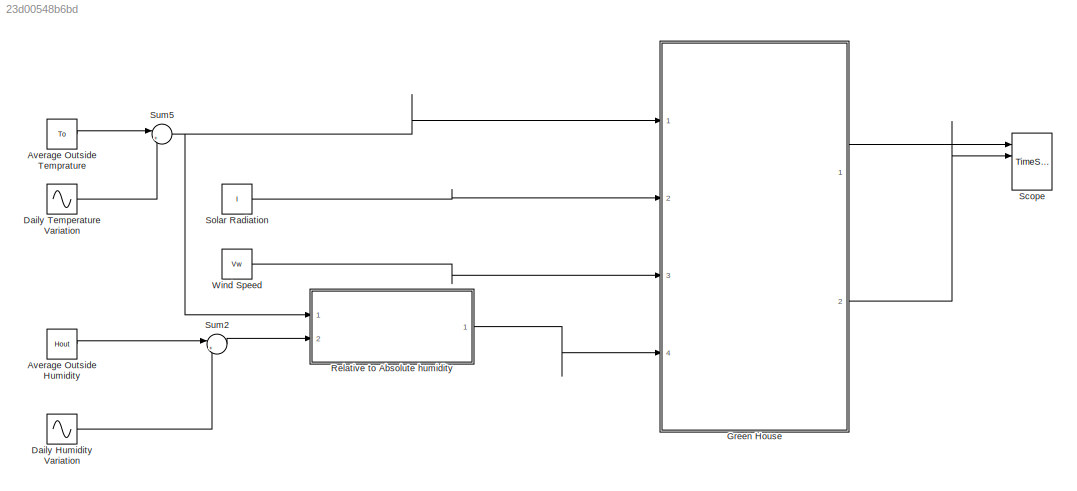
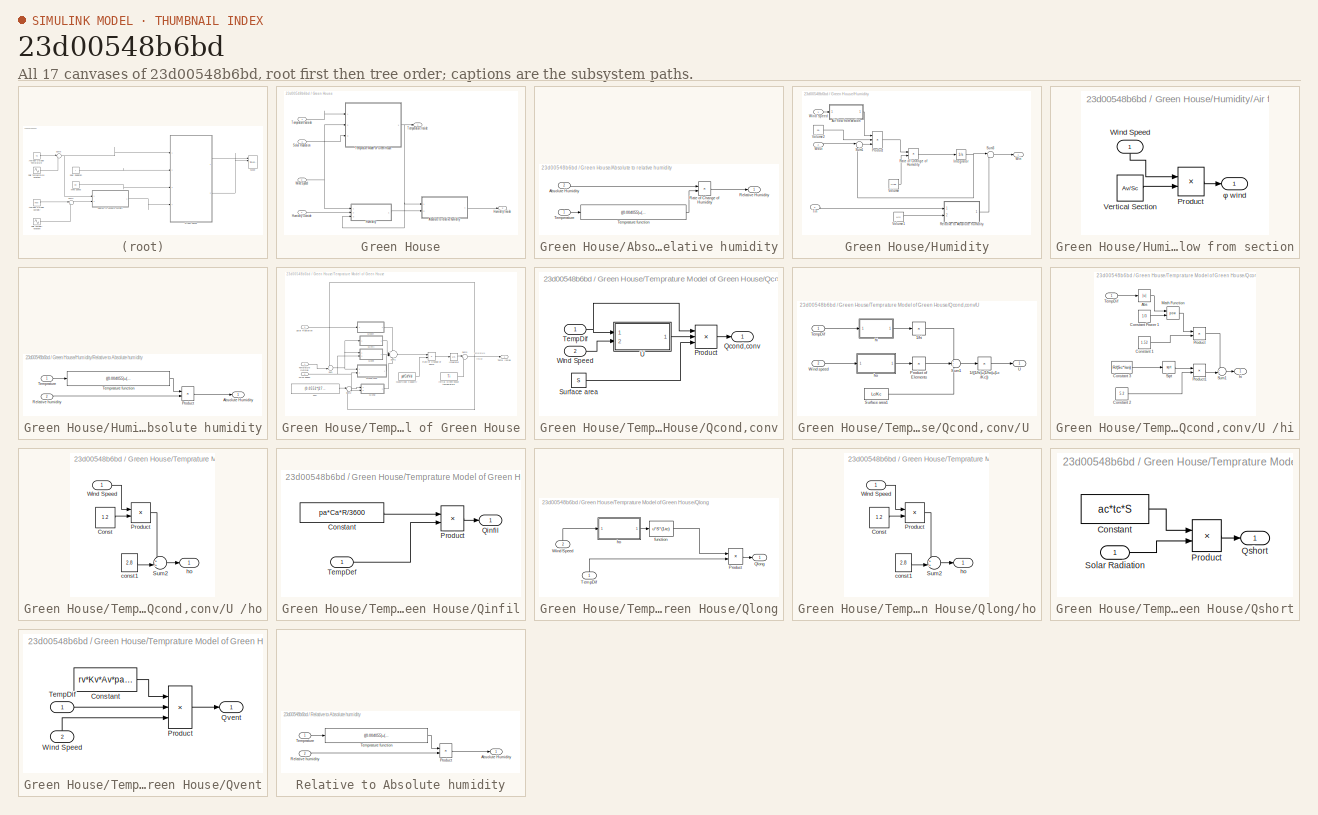
[diagram: thumbnail index - all 17 canvases of the model, root first then tree order]
MODEL slx_23d00548b6bd
KIND model
CONFIG AbsTol = auto
CONFIG FixedStep = auto
CONFIG MaxStep = auto
CONFIG MinStep = auto
CONFIG RelTol = 1e-3
CONFIG SampleTimeConstraint = Unconstrained
CONFIG Solver = ode45
CONFIG SolverMode = Auto
CONFIG SolverName = ode45
CONFIG StartTime = 0.0
CONFIG StopTime = 10000.0
BLOCK [Constant] Average Outside Humidity
  Value = Hout
BLOCK [Constant] Average Outside Temprature 
  Value = To
BLOCK [Sin] Daily Humidity Variation
  Amplitude = 5
  Frequency = 0.005
  Phase = 1.5708
  Ports = [0, 1]
  SampleTime = 0
BLOCK [Sin] Daily Temperature Variation
  Amplitude = 5
  Ports = [0, 1]
  SampleTime = 0
BLOCK [SubSystem] Green House
  Ports = [4, 2]
  RequestExecContextInheritance = off
BLOCK [SubSystem] Green House/Absolute to relative humidity
  Ports = [2, 1]
  RequestExecContextInheritance = off
BLOCK [Inport] Green House/Absolute to relative humidity/Absolute Humidity
  IconDisplay = Port number
  Port = 2
BLOCK [Product] Green House/Absolute to relative humidity/Rate of Change of Humidity
  InputSameDT = off
  Inputs = */
  OutDataTypeStr = Inherit: Inherit via internal rule
  Ports = [2, 1]
  RndMeth = Floor
  SaturateOnIntegerOverflow = off
BLOCK [Outport] Green House/Absolute to relative humidity/Relative Humidity
  IconDisplay = Port number
BLOCK [Inport] Green House/Absolute to relative humidity/Temperature
  IconDisplay = Port number
BLOCK [Fcn] Green House/Absolute to relative humidity/Temprature function
  Expr = ((0.004055)+(0.0001152*u)+0.00002167*u^2)/100
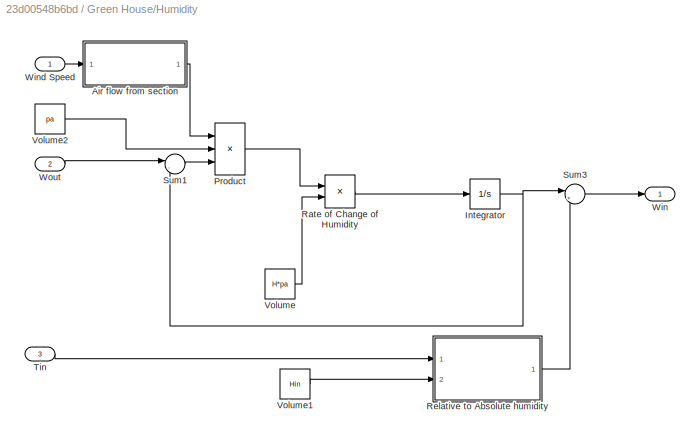
BLOCK [SubSystem] Green House/Humidity
  Ports = [3, 1]
  RequestExecContextInheritance = off
BLOCK [Outport] Green House/Humidity Inside
  IconDisplay = Port number
  Port = 2
BLOCK [Inport] Green House/Humidity Outside
  IconDisplay = Port number
  Port = 4
BLOCK [SubSystem] Green House/Humidity/Air flow from section
  Ports = [1, 1]
  RequestExecContextInheritance = off
BLOCK [Product] Green House/Humidity/Air flow from section/Product
  InputSameDT = off
  OutDataTypeStr = Inherit: Inherit via internal rule
  Ports = [2, 1]
  RndMeth = Floor
  SaturateOnIntegerOverflow = off
BLOCK [Constant] Green House/Humidity/Air flow from section/Vertical Section
  Value = Av/Sc
BLOCK [Inport] Green House/Humidity/Air flow from section/Wind Speed
  IconDisplay = Port number
BLOCK [Outport] Green House/Humidity/Air flow from section/φ wind
  IconDisplay = Port number
BLOCK [Integrator] Green House/Humidity/Integrator
  Ports = [1, 1]
BLOCK [Product] Green House/Humidity/Product
  InputSameDT = off
  Inputs = 3
  OutDataTypeStr = Inherit: Inherit via internal rule
  Ports = [3, 1]
  RndMeth = Floor
  SaturateOnIntegerOverflow = off
BLOCK [Product] Green House/Humidity/Rate of Change of Humidity
  InputSameDT = off
  Inputs = */
  OutDataTypeStr = Inherit: Inherit via internal rule
  Ports = [2, 1]
  RndMeth = Floor
  SaturateOnIntegerOverflow = off
BLOCK [SubSystem] Green House/Humidity/Relative to Absolute humidity
  Ports = [2, 1]
  RequestExecContextInheritance = off
BLOCK [Outport] Green House/Humidity/Relative to Absolute humidity/Absolute Humidity
  IconDisplay = Port number
BLOCK [Product] Green House/Humidity/Relative to Absolute humidity/Product
  InputSameDT = off
  OutDataTypeStr = Inherit: Inherit via internal rule
  Ports = [2, 1]
  RndMeth = Floor
  SaturateOnIntegerOverflow = off
BLOCK [Inport] Green House/Humidity/Relative to Absolute humidity/Relative humidity
  IconDisplay = Port number
  Port = 2
BLOCK [Inport] Green House/Humidity/Relative to Absolute humidity/Temprature
  IconDisplay = Port number
BLOCK [Fcn] Green House/Humidity/Relative to Absolute humidity/Temprature function
  Expr = ((0.004055)+(0.0001152*u)+0.00002167*u^2)/100
BLOCK [Sum] Green House/Humidity/Sum1
  IconShape = round
  InputSameDT = off
  Inputs = |-+
  OutDataTypeStr = Inherit: Inherit via internal rule
  Ports = [2, 1]
  SaturateOnIntegerOverflow = off
BLOCK [Sum] Green House/Humidity/Sum3
  IconShape = round
  InputSameDT = off
  Inputs = |++
  OutDataTypeStr = Inherit: Inherit via internal rule
  Ports = [2, 1]
  SaturateOnIntegerOverflow = off
BLOCK [Inport] Green House/Humidity/Tin 
  IconDisplay = Port number
  Port = 3
BLOCK [Constant] Green House/Humidity/Volume
  Value = H*pa
BLOCK [Constant] Green House/Humidity/Volume1
  Value = Hin
BLOCK [Constant] Green House/Humidity/Volume2
  Value = pa
BLOCK [Outport] Green House/Humidity/Win
  IconDisplay = Port number
BLOCK [Inport] Green House/Humidity/Wind Speed
  IconDisplay = Port number
BLOCK [Inport] Green House/Humidity/Wout
  IconDisplay = Port number
  Port = 2
BLOCK [Inport] Green House/Solar Radiation
  IconDisplay = Port number
  Port = 2
BLOCK [Outport] Green House/Temperature Inside
  IconDisplay = Signal name
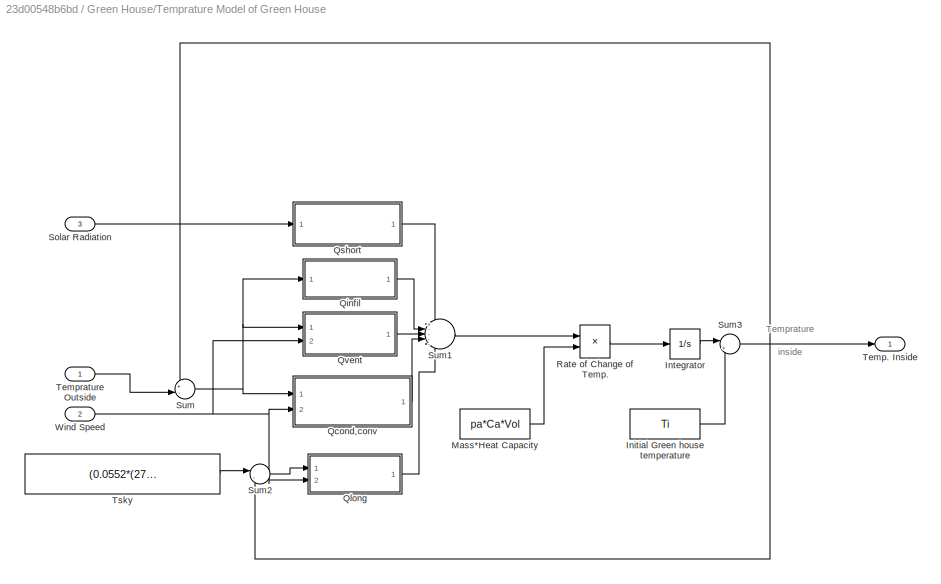
BLOCK [SubSystem] Green House/Temprature Model of Green House
  Ports = [3, 1]
  RequestExecContextInheritance = off
BLOCK [Constant] Green House/Temprature Model of Green House/Initial Green house temperature
  Value = Ti
BLOCK [Integrator] Green House/Temprature Model of Green House/Integrator
  Ports = [1, 1]
BLOCK [Constant] Green House/Temprature Model of Green House/Mass*Heat Capacity
  Value = pa*Ca*Vol
BLOCK [SubSystem] Green House/Temprature Model of Green House/Qcond,conv
  Ports = [2, 1]
  RequestExecContextInheritance = off
BLOCK [Product] Green House/Temprature Model of Green House/Qcond,conv/Product
  InputSameDT = off
  Inputs = 3
  OutDataTypeStr = Inherit: Inherit via internal rule
  Ports = [3, 1]
  RndMeth = Floor
  SaturateOnIntegerOverflow = off
BLOCK [Outport] Green House/Temprature Model of Green House/Qcond,conv/Qcond,conv
  IconDisplay = Port number
BLOCK [Constant] Green House/Temprature Model of Green House/Qcond,conv/Surface area
  Value = S
BLOCK [Inport] Green House/Temprature Model of Green House/Qcond,conv/TempDif 
  IconDisplay = Port number
BLOCK [SubSystem] Green House/Temprature Model of Green House/Qcond,conv/U 
  Ports = [2, 1]
  RequestExecContextInheritance = off
BLOCK [Product] Green House/Temprature Model of Green House/Qcond,conv/U /1//((1//hi)+(1//ho)+(Lc//Kc))
  InputSameDT = off
  Inputs = /
  OutDataTypeStr = Inherit: Inherit via internal rule
  Ports = [1, 1]
  RndMeth = Floor
  SaturateOnIntegerOverflow = off
BLOCK [Product] Green House/Temprature Model of Green House/Qcond,conv/U /1//hi
  InputSameDT = off
  Inputs = /
  OutDataTypeStr = Inherit: Inherit via internal rule
  Ports = [1, 1]
  RndMeth = Floor
  SaturateOnIntegerOverflow = off
BLOCK [Product] Green House/Temprature Model of Green House/Qcond,conv/U /Product of Elements
  InputSameDT = off
  Inputs = /
  OutDataTypeStr = Inherit: Inherit via internal rule
  Ports = [1, 1]
  RndMeth = Floor
  SaturateOnIntegerOverflow = off
BLOCK [Sum] Green House/Temprature Model of Green House/Qcond,conv/U /Sum1
  IconShape = round
  InputSameDT = off
  Inputs = +++
  OutDataTypeStr = Inherit: Inherit via internal rule
  Ports = [3, 1]
  SaturateOnIntegerOverflow = off
BLOCK [Constant] Green House/Temprature Model of Green House/Qcond,conv/U /Surface area1
  Value = Lc/Kc
BLOCK [Inport] Green House/Temprature Model of Green House/Qcond,conv/U /TempDif 
  IconDisplay = Port number
BLOCK [Outport] Green House/Temprature Model of Green House/Qcond,conv/U /U 
  IconDisplay = Port number
BLOCK [Inport] Green House/Temprature Model of Green House/Qcond,conv/U /Wind speed
  IconDisplay = Port number
  Port = 2
BLOCK [SubSystem] Green House/Temprature Model of Green House/Qcond,conv/U /hi
  Ports = [1, 1]
  RequestExecContextInheritance = off
BLOCK [Abs] Green House/Temprature Model of Green House/Qcond,conv/U /hi/Abs
  SaturateOnIntegerOverflow = off
BLOCK [Constant] Green House/Temprature Model of Green House/Qcond,conv/U /hi/Constant 1
  Value = 1.52
BLOCK [Constant] Green House/Temprature Model of Green House/Qcond,conv/U /hi/Constant 2
  Value = 5.2
BLOCK [Constant] Green House/Temprature Model of Green House/Qcond,conv/U /hi/Constant 3
  Value = R/(Sc*len)
BLOCK [Constant] Green House/Temprature Model of Green House/Qcond,conv/U /hi/Constant Power 1
  Value = 1/3
BLOCK [Math] Green House/Temprature Model of Green House/Qcond,conv/U /hi/Math Function
  Operator = pow
  Ports = [2, 1]
BLOCK [Product] Green House/Temprature Model of Green House/Qcond,conv/U /hi/Product
  InputSameDT = off
  OutDataTypeStr = Inherit: Inherit via internal rule
  Ports = [2, 1]
  RndMeth = Floor
  SaturateOnIntegerOverflow = off
BLOCK [Product] Green House/Temprature Model of Green House/Qcond,conv/U /hi/Product1
  InputSameDT = off
  OutDataTypeStr = Inherit: Inherit via internal rule
  Ports = [2, 1]
  RndMeth = Floor
  SaturateOnIntegerOverflow = off
BLOCK [Sqrt] Green House/Temprature Model of Green House/Qcond,conv/U /hi/Sqrt
BLOCK [Sum] Green House/Temprature Model of Green House/Qcond,conv/U /hi/Sum1
  IconShape = round
  InputSameDT = off
  Inputs = ++|
  OutDataTypeStr = Inherit: Inherit via internal rule
  Ports = [2, 1]
  SaturateOnIntegerOverflow = off
BLOCK [Inport] Green House/Temprature Model of Green House/Qcond,conv/U /hi/TempDif 
  IconDisplay = Port number
BLOCK [Outport] Green House/Temprature Model of Green House/Qcond,conv/U /hi/hi 
  IconDisplay = Port number
BLOCK [SubSystem] Green House/Temprature Model of Green House/Qcond,conv/U /ho
  Ports = [1, 1]
  RequestExecContextInheritance = off
BLOCK [Constant] Green House/Temprature Model of Green House/Qcond,conv/U /ho/Const
  Value = 1.2
BLOCK [Product] Green House/Temprature Model of Green House/Qcond,conv/U /ho/Product
  InputSameDT = off
  OutDataTypeStr = Inherit: Inherit via internal rule
  Ports = [2, 1]
  RndMeth = Floor
  SaturateOnIntegerOverflow = off
BLOCK [Sum] Green House/Temprature Model of Green House/Qcond,conv/U /ho/Sum2
  IconShape = round
  InputSameDT = off
  Inputs = ++|
  OutDataTypeStr = Inherit: Inherit via internal rule
  Ports = [2, 1]
  SaturateOnIntegerOverflow = off
BLOCK [Inport] Green House/Temprature Model of Green House/Qcond,conv/U /ho/Wind Speed
  IconDisplay = Port number
BLOCK [Constant] Green House/Temprature Model of Green House/Qcond,conv/U /ho/const1
  Value = 2.8
BLOCK [Outport] Green House/Temprature Model of Green House/Qcond,conv/U /ho/ho
  IconDisplay = Port number
BLOCK [Inport] Green House/Temprature Model of Green House/Qcond,conv/Wind Speed
  IconDisplay = Port number
  Port = 2
BLOCK [SubSystem] Green House/Temprature Model of Green House/Qinfil
  Ports = [1, 1]
  RequestExecContextInheritance = off
BLOCK [Constant] Green House/Temprature Model of Green House/Qinfil/Constant 
  Value = pa*Ca*R/3600
BLOCK [Product] Green House/Temprature Model of Green House/Qinfil/Product
  InputSameDT = off
  OutDataTypeStr = Inherit: Inherit via internal rule
  Ports = [2, 1]
  RndMeth = Floor
  SaturateOnIntegerOverflow = off
BLOCK [Outport] Green House/Temprature Model of Green House/Qinfil/Qinfil 
  IconDisplay = Port number
BLOCK [Inport] Green House/Temprature Model of Green House/Qinfil/TempDef 
  IconDisplay = Port number
BLOCK [SubSystem] Green House/Temprature Model of Green House/Qlong
  Ports = [2, 1]
  RequestExecContextInheritance = off
BLOCK [Fcn] Green House/Temprature Model of Green House/Qlong/ function
  Expr = u*S*(1-tc)
BLOCK [Product] Green House/Temprature Model of Green House/Qlong/Product
  InputSameDT = off
  OutDataTypeStr = Inherit: Inherit via internal rule
  Ports = [2, 1]
  RndMeth = Floor
  SaturateOnIntegerOverflow = off
BLOCK [Outport] Green House/Temprature Model of Green House/Qlong/Qlong
  IconDisplay = Port number
BLOCK [Inport] Green House/Temprature Model of Green House/Qlong/TempDif
  IconDisplay = Port number
BLOCK [Inport] Green House/Temprature Model of Green House/Qlong/Wind Speed
  IconDisplay = Port number
  Port = 2
BLOCK [SubSystem] Green House/Temprature Model of Green House/Qlong/ho
  Ports = [1, 1]
  RequestExecContextInheritance = off
BLOCK [Constant] Green House/Temprature Model of Green House/Qlong/ho/Const
  Value = 1.2
BLOCK [Product] Green House/Temprature Model of Green House/Qlong/ho/Product
  InputSameDT = off
  OutDataTypeStr = Inherit: Inherit via internal rule
  Ports = [2, 1]
  RndMeth = Floor
  SaturateOnIntegerOverflow = off
BLOCK [Sum] Green House/Temprature Model of Green House/Qlong/ho/Sum2
  IconShape = round
  InputSameDT = off
  Inputs = ++|
  OutDataTypeStr = Inherit: Inherit via internal rule
  Ports = [2, 1]
  SaturateOnIntegerOverflow = off
BLOCK [Inport] Green House/Temprature Model of Green House/Qlong/ho/Wind Speed
  IconDisplay = Port number
BLOCK [Constant] Green House/Temprature Model of Green House/Qlong/ho/const1
  Value = 2.8
BLOCK [Outport] Green House/Temprature Model of Green House/Qlong/ho/ho
  IconDisplay = Port number
BLOCK [SubSystem] Green House/Temprature Model of Green House/Qshort
  Ports = [1, 1]
  RequestExecContextInheritance = off
BLOCK [Constant] Green House/Temprature Model of Green House/Qshort/Constant
  Value = ac*tc*S
BLOCK [Product] Green House/Temprature Model of Green House/Qshort/Product
  InputSameDT = off
  OutDataTypeStr = Inherit: Inherit via internal rule
  Ports = [2, 1]
  RndMeth = Floor
  SaturateOnIntegerOverflow = off
BLOCK [Outport] Green House/Temprature Model of Green House/Qshort/Qshort
  IconDisplay = Port number
BLOCK [Inport] Green House/Temprature Model of Green House/Qshort/Solar Radiation
  IconDisplay = Port number
BLOCK [SubSystem] Green House/Temprature Model of Green House/Qvent
  Ports = [2, 1]
  RequestExecContextInheritance = off
BLOCK [Constant] Green House/Temprature Model of Green House/Qvent/Constant
  Value = rv*Kv*Av*pa*Ca
BLOCK [Product] Green House/Temprature Model of Green House/Qvent/Product
  InputSameDT = off
  Inputs = 3
  OutDataTypeStr = Inherit: Inherit via internal rule
  Ports = [3, 1]
  RndMeth = Floor
  SaturateOnIntegerOverflow = off
BLOCK [Outport] Green House/Temprature Model of Green House/Qvent/Qvent
  IconDisplay = Port number
BLOCK [Inport] Green House/Temprature Model of Green House/Qvent/TempDif
  IconDisplay = Port number
BLOCK [Inport] Green House/Temprature Model of Green House/Qvent/Wind Speed
  IconDisplay = Port number
  Port = 2
BLOCK [Product] Green House/Temprature Model of Green House/Rate of Change of Temp.
  InputSameDT = off
  Inputs = */
  OutDataTypeStr = Inherit: Inherit via internal rule
  Ports = [2, 1]
  RndMeth = Floor
  SaturateOnIntegerOverflow = off
BLOCK [Inport] Green House/Temprature Model of Green House/Solar Radiation
  IconDisplay = Port number
  Port = 3
BLOCK [Sum] Green House/Temprature Model of Green House/Sum
  IconShape = round
  InputSameDT = off
  Inputs = +-|
  OutDataTypeStr = Inherit: Inherit via internal rule
  Ports = [2, 1]
  SaturateOnIntegerOverflow = off
BLOCK [Sum] Green House/Temprature Model of Green House/Sum1
  IconShape = round
  InputSameDT = off
  Inputs = +----
  OutDataTypeStr = Inherit: Inherit via internal rule
  Ports = [5, 1]
  SaturateOnIntegerOverflow = off
BLOCK [Sum] Green House/Temprature Model of Green House/Sum2
  IconShape = round
  InputSameDT = off
  Inputs = |-+
  OutDataTypeStr = Inherit: Inherit via internal rule
  Ports = [2, 1]
  SaturateOnIntegerOverflow = off
BLOCK [Sum] Green House/Temprature Model of Green House/Sum3
  IconShape = round
  InputSameDT = off
  Inputs = |++
  OutDataTypeStr = Inherit: Inherit via internal rule
  Ports = [2, 1]
  SaturateOnIntegerOverflow = off
BLOCK [Outport] Green House/Temprature Model of Green House/Temp. Inside
  IconDisplay = Port number
BLOCK [Inport] Green House/Temprature Model of Green House/Temprature Outside
  IconDisplay = Port number
BLOCK [Constant] Green House/Temprature Model of Green House/Tsky
  Value = (0.0552*(273.15+To)^1.5)-273.15
BLOCK [Inport] Green House/Temprature Model of Green House/Wind Speed
  IconDisplay = Port number
  Port = 2
BLOCK [Inport] Green House/Temprature outside
  IconDisplay = Port number
BLOCK [Inport] Green House/Wind Speed
  IconDisplay = Port number
  Port = 3
BLOCK [SubSystem] Relative to Absolute humidity
  Ports = [2, 1]
  RequestExecContextInheritance = off
BLOCK [Outport] Relative to Absolute humidity/Absolute Humidity
  IconDisplay = Port number
BLOCK [Product] Relative to Absolute humidity/Product
  InputSameDT = off
  OutDataTypeStr = Inherit: Inherit via internal rule
  Ports = [2, 1]
  RndMeth = Floor
  SaturateOnIntegerOverflow = off
BLOCK [Inport] Relative to Absolute humidity/Relative humidity
  IconDisplay = Port number
  Port = 2
BLOCK [Inport] Relative to Absolute humidity/Temprature
  IconDisplay = Port number
BLOCK [Fcn] Relative to Absolute humidity/Temprature function
  Expr = ((0.004055)+(0.0001152*u)+0.00002167*u^2)/100
BLOCK [TimeScope] Scope
  NumInputPorts = 4
  Ports = [4]
  ScopeSpecificationString = Simulink.scopes.TimeScopeBlockCfg('CurrentConfiguration', extmgr.ConfigurationSet(extmgr.Configuration('Core','General UI',true),extmgr.Configuration('Core','Source UI',true),extmgr.Configuration('Sources','WiredSimulink',true,'DataLoggingDecimation','1','DataLoggingDecimateData',true,'DataLoggingSaveFormat','Array','DataLoggingVariableName','ScopeData'),extmgr.Configuration('Visuals','Time Domain...<+1769ch>
BLOCK [Constant] Solar Radiation
  Value = I
BLOCK [Sum] Sum2
  IconShape = round
  InputSameDT = off
  Inputs = |++
  OutDataTypeStr = Inherit: Inherit via internal rule
  Ports = [2, 1]
  SaturateOnIntegerOverflow = off
BLOCK [Sum] Sum5
  IconShape = round
  InputSameDT = off
  Inputs = |++
  OutDataTypeStr = Inherit: Inherit via internal rule
  Ports = [2, 1]
  SaturateOnIntegerOverflow = off
BLOCK [Constant] Wind Speed
  Value = Vw
ANNOTATION Green House/Temprature Model of Green House: Temprature inside
LINE Average Outside Humidity:1 -> Sum2:1
LINE Average Outside Temprature :1 -> Sum5:1
LINE Daily Humidity Variation:1 -> Sum2:2
LINE Daily Temperature Variation:1 -> Sum5:2
LINE Green House/Absolute to relative humidity/Absolute Humidity:1 -> Green House/Absolute to relative humidity/Rate of Change of Humidity:1
LINE Green House/Absolute to relative humidity/Rate of Change of Humidity:1 -> Green House/Absolute to relative humidity/Relative Humidity:1
LINE Green House/Absolute to relative humidity/Temperature:1 -> Green House/Absolute to relative humidity/Temprature function:1
LINE Green House/Absolute to relative humidity/Temprature function:1 -> Green House/Absolute to relative humidity/Rate of Change of Humidity:2
LINE Green House/Absolute to relative humidity:1 -> Green House/Humidity Inside:1
LINE Green House/Humidity Outside:1 -> Green House/Humidity:2
LINE Green House/Humidity/Air flow from section/Product:1 -> Green House/Humidity/Air flow from section/φ wind:1
LINE Green House/Humidity/Air flow from section/Vertical Section:1 -> Green House/Humidity/Air flow from section/Product:2
LINE Green House/Humidity/Air flow from section/Wind Speed:1 -> Green House/Humidity/Air flow from section/Product:1
LINE Green House/Humidity/Air flow from section:1 -> Green House/Humidity/Product:1
NET Green House/Humidity/Integrator:1 -> Green House/Humidity/Sum1:2, Green House/Humidity/Sum3:1
LINE Green House/Humidity/Product:1 -> Green House/Humidity/Rate of Change of Humidity:1
LINE Green House/Humidity/Rate of Change of Humidity:1 -> Green House/Humidity/Integrator:1
LINE Green House/Humidity/Relative to Absolute humidity/Product:1 -> Green House/Humidity/Relative to Absolute humidity/Absolute Humidity:1
LINE Green House/Humidity/Relative to Absolute humidity/Relative humidity:1 -> Green House/Humidity/Relative to Absolute humidity/Product:2
LINE Green House/Humidity/Relative to Absolute humidity/Temprature function:1 -> Green House/Humidity/Relative to Absolute humidity/Product:1
LINE Green House/Humidity/Relative to Absolute humidity/Temprature:1 -> Green House/Humidity/Relative to Absolute humidity/Temprature function:1
LINE Green House/Humidity/Relative to Absolute humidity:1 -> Green House/Humidity/Sum3:2
LINE Green House/Humidity/Sum1:1 -> Green House/Humidity/Product:3
LINE Green House/Humidity/Sum3:1 -> Green House/Humidity/Win:1
LINE Green House/Humidity/Tin :1 -> Green House/Humidity/Relative to Absolute humidity:1
LINE Green House/Humidity/Volume1:1 -> Green House/Humidity/Relative to Absolute humidity:2
LINE Green House/Humidity/Volume2:1 -> Green House/Humidity/Product:2
LINE Green House/Humidity/Volume:1 -> Green House/Humidity/Rate of Change of Humidity:2
LINE Green House/Humidity/Wind Speed:1 -> Green House/Humidity/Air flow from section:1
LINE Green House/Humidity/Wout:1 -> Green House/Humidity/Sum1:1
LINE Green House/Humidity:1 -> Green House/Absolute to relative humidity:2
LINE Green House/Solar Radiation:1 -> Green House/Temprature Model of Green House:3
LINE Green House/Temprature Model of Green House/Initial Green house temperature:1 -> Green House/Temprature Model of Green House/Sum3:2
LINE Green House/Temprature Model of Green House/Integrator:1 -> Green House/Temprature Model of Green House/Sum3:1
LINE Green House/Temprature Model of Green House/Mass*Heat Capacity:1 -> Green House/Temprature Model of Green House/Rate of Change of Temp.:2
LINE Green House/Temprature Model of Green House/Qcond,conv/Product:1 -> Green House/Temprature Model of Green House/Qcond,conv/Qcond,conv:1
LINE Green House/Temprature Model of Green House/Qcond,conv/Surface area:1 -> Green House/Temprature Model of Green House/Qcond,conv/Product:3
NET Green House/Temprature Model of Green House/Qcond,conv/TempDif :1 -> Green House/Temprature Model of Green House/Qcond,conv/Product:1, Green House/Temprature Model of Green House/Qcond,conv/U :1
LINE Green House/Temprature Model of Green House/Qcond,conv/U /1//((1//hi)+(1//ho)+(Lc//Kc)):1 -> Green House/Temprature Model of Green House/Qcond,conv/U /U :1
LINE Green House/Temprature Model of Green House/Qcond,conv/U /1//hi:1 -> Green House/Temprature Model of Green House/Qcond,conv/U /Sum1:1
LINE Green House/Temprature Model of Green House/Qcond,conv/U /Product of Elements:1 -> Green House/Temprature Model of Green House/Qcond,conv/U /Sum1:2
LINE Green House/Temprature Model of Green House/Qcond,conv/U /Sum1:1 -> Green House/Temprature Model of Green House/Qcond,conv/U /1//((1//hi)+(1//ho)+(Lc//Kc)):1
LINE Green House/Temprature Model of Green House/Qcond,conv/U /Surface area1:1 -> Green House/Temprature Model of Green House/Qcond,conv/U /Sum1:3
LINE Green House/Temprature Model of Green House/Qcond,conv/U /TempDif :1 -> Green House/Temprature Model of Green House/Qcond,conv/U /hi:1
LINE Green House/Temprature Model of Green House/Qcond,conv/U /Wind speed:1 -> Green House/Temprature Model of Green House/Qcond,conv/U /ho:1
LINE Green House/Temprature Model of Green House/Qcond,conv/U /hi/Abs:1 -> Green House/Temprature Model of Green House/Qcond,conv/U /hi/Math Function:1
LINE Green House/Temprature Model of Green House/Qcond,conv/U /hi/Constant 1:1 -> Green House/Temprature Model of Green House/Qcond,conv/U /hi/Product:2
LINE Green House/Temprature Model of Green House/Qcond,conv/U /hi/Constant 2:1 -> Green House/Temprature Model of Green House/Qcond,conv/U /hi/Product1:2
LINE Green House/Temprature Model of Green House/Qcond,conv/U /hi/Constant 3:1 -> Green House/Temprature Model of Green House/Qcond,conv/U /hi/Sqrt:1
LINE Green House/Temprature Model of Green House/Qcond,conv/U /hi/Constant Power 1:1 -> Green House/Temprature Model of Green House/Qcond,conv/U /hi/Math Function:2
LINE Green House/Temprature Model of Green House/Qcond,conv/U /hi/Math Function:1 -> Green House/Temprature Model of Green House/Qcond,conv/U /hi/Product:1
LINE Green House/Temprature Model of Green House/Qcond,conv/U /hi/Product1:1 -> Green House/Temprature Model of Green House/Qcond,conv/U /hi/Sum1:2
LINE Green House/Temprature Model of Green House/Qcond,conv/U /hi/Product:1 -> Green House/Temprature Model of Green House/Qcond,conv/U /hi/Sum1:1
LINE Green House/Temprature Model of Green House/Qcond,conv/U /hi/Sqrt:1 -> Green House/Temprature Model of Green House/Qcond,conv/U /hi/Product1:1
LINE Green House/Temprature Model of Green House/Qcond,conv/U /hi/Sum1:1 -> Green House/Temprature Model of Green House/Qcond,conv/U /hi/hi :1
LINE Green House/Temprature Model of Green House/Qcond,conv/U /hi/TempDif :1 -> Green House/Temprature Model of Green House/Qcond,conv/U /hi/Abs:1
LINE Green House/Temprature Model of Green House/Qcond,conv/U /hi:1 -> Green House/Temprature Model of Green House/Qcond,conv/U /1//hi:1
LINE Green House/Temprature Model of Green House/Qcond,conv/U /ho/Const:1 -> Green House/Temprature Model of Green House/Qcond,conv/U /ho/Product:2
LINE Green House/Temprature Model of Green House/Qcond,conv/U /ho/Product:1 -> Green House/Temprature Model of Green House/Qcond,conv/U /ho/Sum2:1
LINE Green House/Temprature Model of Green House/Qcond,conv/U /ho/Sum2:1 -> Green House/Temprature Model of Green House/Qcond,conv/U /ho/ho:1
LINE Green House/Temprature Model of Green House/Qcond,conv/U /ho/Wind Speed:1 -> Green House/Temprature Model of Green House/Qcond,conv/U /ho/Product:1
LINE Green House/Temprature Model of Green House/Qcond,conv/U /ho/const1:1 -> Green House/Temprature Model of Green House/Qcond,conv/U /ho/Sum2:2
LINE Green House/Temprature Model of Green House/Qcond,conv/U /ho:1 -> Green House/Temprature Model of Green House/Qcond,conv/U /Product of Elements:1
LINE Green House/Temprature Model of Green House/Qcond,conv/U :1 -> Green House/Temprature Model of Green House/Qcond,conv/Product:2
LINE Green House/Temprature Model of Green House/Qcond,conv/Wind Speed:1 -> Green House/Temprature Model of Green House/Qcond,conv/U :2
LINE Green House/Temprature Model of Green House/Qcond,conv:1 -> Green House/Temprature Model of Green House/Sum1:4
LINE Green House/Temprature Model of Green House/Qinfil/Constant :1 -> Green House/Temprature Model of Green House/Qinfil/Product:1
LINE Green House/Temprature Model of Green House/Qinfil/Product:1 -> Green House/Temprature Model of Green House/Qinfil/Qinfil :1
LINE Green House/Temprature Model of Green House/Qinfil/TempDef :1 -> Green House/Temprature Model of Green House/Qinfil/Product:2
LINE Green House/Temprature Model of Green House/Qinfil:1 -> Green House/Temprature Model of Green House/Sum1:2
LINE Green House/Temprature Model of Green House/Qlong/ function:1 -> Green House/Temprature Model of Green House/Qlong/Product:1
LINE Green House/Temprature Model of Green House/Qlong/Product:1 -> Green House/Temprature Model of Green House/Qlong/Qlong:1
LINE Green House/Temprature Model of Green House/Qlong/TempDif:1 -> Green House/Temprature Model of Green House/Qlong/Product:2
LINE Green House/Temprature Model of Green House/Qlong/Wind Speed:1 -> Green House/Temprature Model of Green House/Qlong/ho:1
LINE Green House/Temprature Model of Green House/Qlong/ho/Const:1 -> Green House/Temprature Model of Green House/Qlong/ho/Product:2
LINE Green House/Temprature Model of Green House/Qlong/ho/Product:1 -> Green House/Temprature Model of Green House/Qlong/ho/Sum2:1
LINE Green House/Temprature Model of Green House/Qlong/ho/Sum2:1 -> Green House/Temprature Model of Green House/Qlong/ho/ho:1
LINE Green House/Temprature Model of Green House/Qlong/ho/Wind Speed:1 -> Green House/Temprature Model of Green House/Qlong/ho/Product:1
LINE Green House/Temprature Model of Green House/Qlong/ho/const1:1 -> Green House/Temprature Model of Green House/Qlong/ho/Sum2:2
LINE Green House/Temprature Model of Green House/Qlong/ho:1 -> Green House/Temprature Model of Green House/Qlong/ function:1
LINE Green House/Temprature Model of Green House/Qlong:1 -> Green House/Temprature Model of Green House/Sum1:5
LINE Green House/Temprature Model of Green House/Qshort/Constant:1 -> Green House/Temprature Model of Green House/Qshort/Product:1
LINE Green House/Temprature Model of Green House/Qshort/Product:1 -> Green House/Temprature Model of Green House/Qshort/Qshort:1
LINE Green House/Temprature Model of Green House/Qshort/Solar Radiation:1 -> Green House/Temprature Model of Green House/Qshort/Product:2
LINE Green House/Temprature Model of Green House/Qshort:1 -> Green House/Temprature Model of Green House/Sum1:1
LINE Green House/Temprature Model of Green House/Qvent/Constant:1 -> Green House/Temprature Model of Green House/Qvent/Product:1
LINE Green House/Temprature Model of Green House/Qvent/Product:1 -> Green House/Temprature Model of Green House/Qvent/Qvent:1
LINE Green House/Temprature Model of Green House/Qvent/TempDif:1 -> Green House/Temprature Model of Green House/Qvent/Product:2
LINE Green House/Temprature Model of Green House/Qvent/Wind Speed:1 -> Green House/Temprature Model of Green House/Qvent/Product:3
LINE Green House/Temprature Model of Green House/Qvent:1 -> Green House/Temprature Model of Green House/Sum1:3
LINE Green House/Temprature Model of Green House/Rate of Change of Temp.:1 -> Green House/Temprature Model of Green House/Integrator:1
LINE Green House/Temprature Model of Green House/Solar Radiation:1 -> Green House/Temprature Model of Green House/Qshort:1
LINE Green House/Temprature Model of Green House/Sum1:1 -> Green House/Temprature Model of Green House/Rate of Change of Temp.:1
LINE Green House/Temprature Model of Green House/Sum2:1 -> Green House/Temprature Model of Green House/Qlong:1
NET Green House/Temprature Model of Green House/Sum3:1 -> Green House/Temprature Model of Green House/Sum2:2, Green House/Temprature Model of Green House/Sum:1, Green House/Temprature Model of Green House/Temp. Inside:1
NET Green House/Temprature Model of Green House/Sum:1 -> Green House/Temprature Model of Green House/Qcond,conv:1, Green House/Temprature Model of Green House/Qinfil:1, Green House/Temprature Model of Green House/Qvent:1
LINE Green House/Temprature Model of Green House/Temprature Outside:1 -> Green House/Temprature Model of Green House/Sum:2
LINE Green House/Temprature Model of Green House/Tsky:1 -> Green House/Temprature Model of Green House/Sum2:1
NET Green House/Temprature Model of Green House/Wind Speed:1 -> Green House/Temprature Model of Green House/Qcond,conv:2, Green House/Temprature Model of Green House/Qlong:2, Green House/Temprature Model of Green House/Qvent:2
NET Green House/Temprature Model of Green House:1 -> Green House/Absolute to relative humidity:1, Green House/Humidity:3, Green House/Temperature Inside:1
LINE Green House/Temprature outside:1 -> Green House/Temprature Model of Green House:1
NET Green House/Wind Speed:1 -> Green House/Humidity:1, Green House/Temprature Model of Green House:2
LINE Green House:1 -> Scope:1
LINE Green House:2 -> Scope:2
LINE Relative to Absolute humidity/Product:1 -> Relative to Absolute humidity/Absolute Humidity:1
LINE Relative to Absolute humidity/Relative humidity:1 -> Relative to Absolute humidity/Product:2
LINE Relative to Absolute humidity/Temprature function:1 -> Relative to Absolute humidity/Product:1
LINE Relative to Absolute humidity/Temprature:1 -> Relative to Absolute humidity/Temprature function:1
LINE Relative to Absolute humidity:1 -> Green House:4
LINE Solar Radiation:1 -> Green House:2
LINE Sum2:1 -> Relative to Absolute humidity:2
NET Sum5:1 -> Green House:1, Relative to Absolute humidity:1
LINE Wind Speed:1 -> Green House:3
note: NET lines group one-source signal fan-out (src -> all destinations, sorted); 1:1 wires keep LINE
